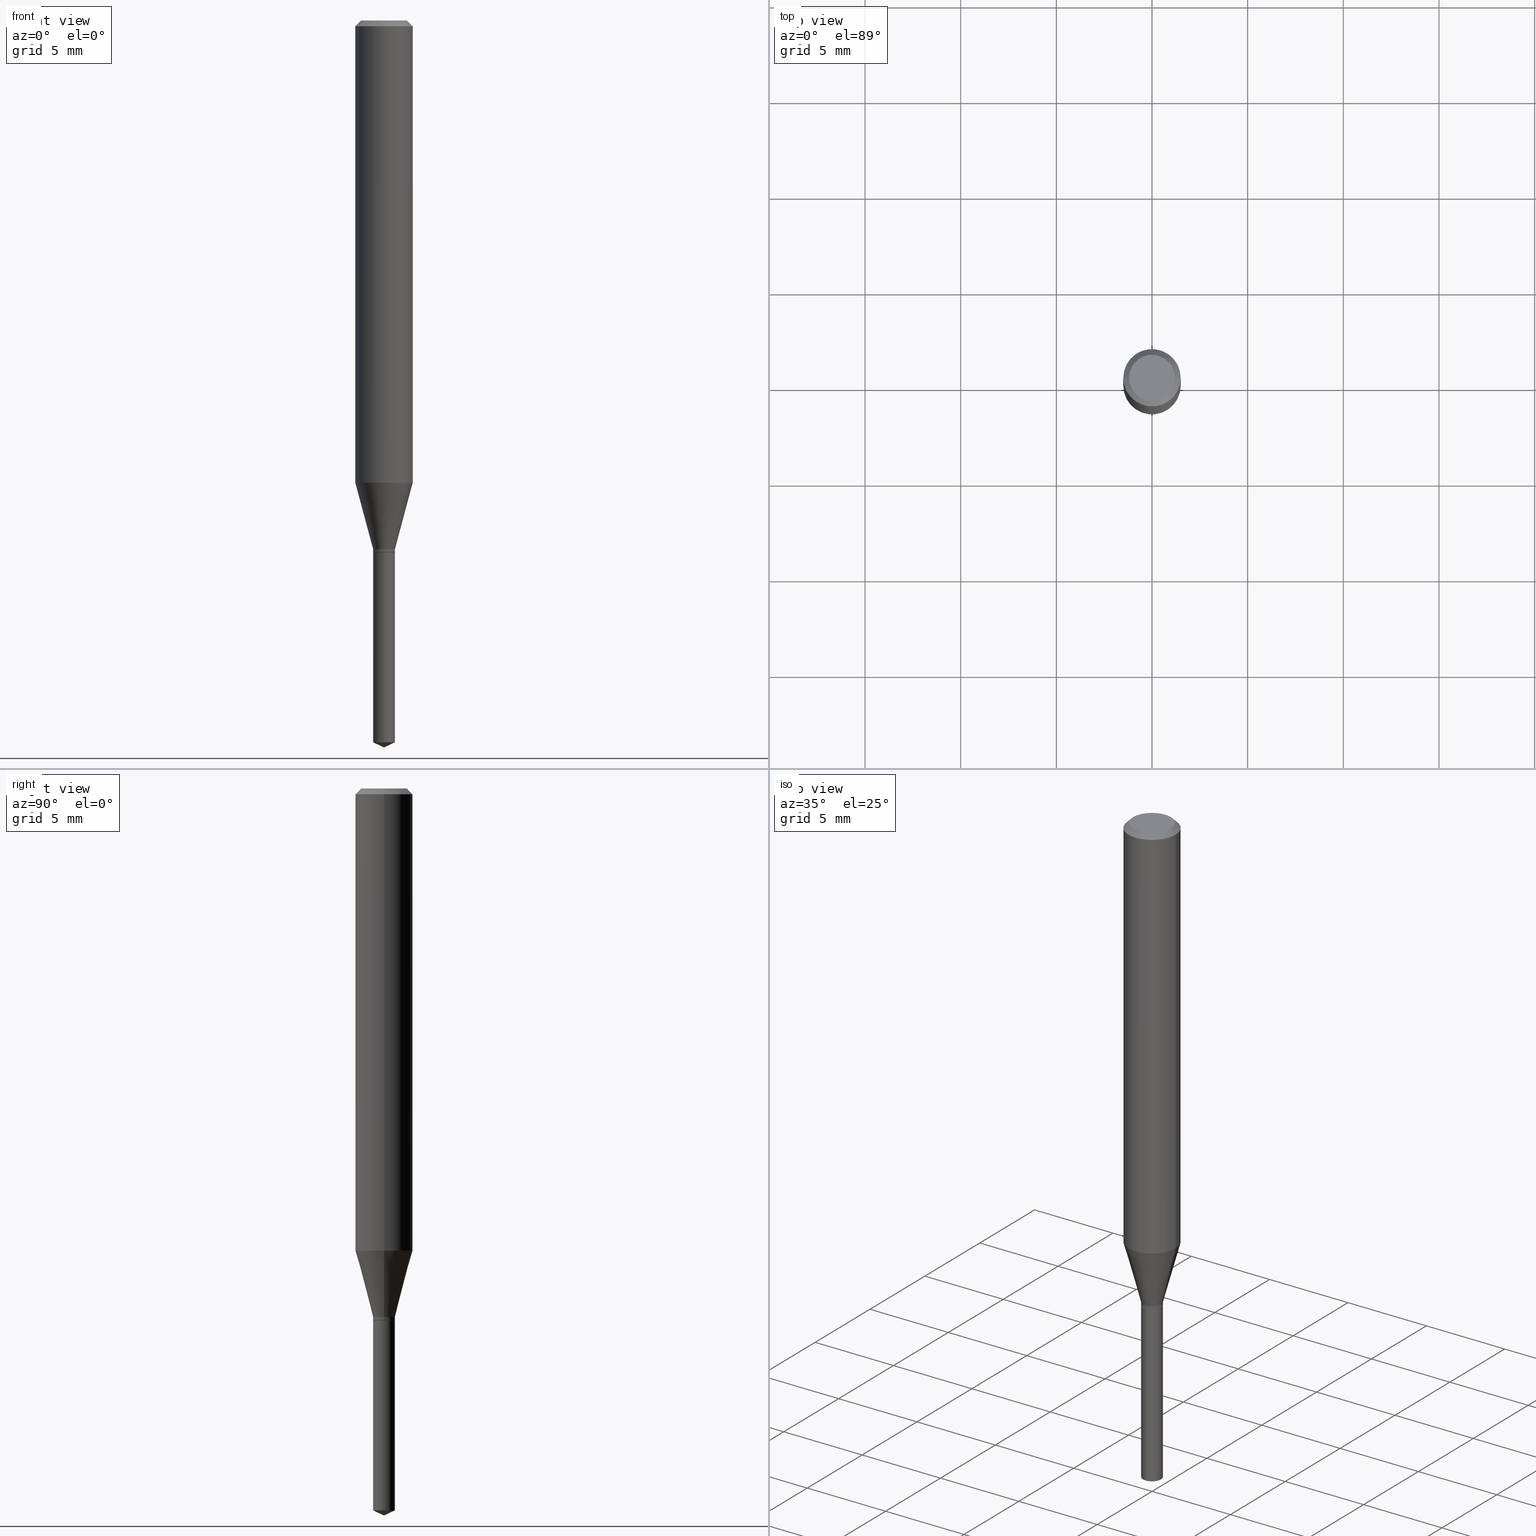
[diagram: canonical four-view strip — front | top / right | iso, engineering-drawing reading convention]
A machine part, canonical four-view strip (front | top / right | iso — engineering-drawing reading convention). The complete STEP part file that produces these views, byte-faithful:
ISO-10303-21;
HEADER;
FILE_DESCRIPTION (( 'STEP AP203' ),
    '1' );
FILE_NAME ('07841.STEP',
    '2024-04-24T04:15:34',
    ( '' ),
    ( '' ),
    'SwSTEP 2.0',
    'SolidWorks 2023',
    '' );
FILE_SCHEMA (( 'CONFIG_CONTROL_DESIGN' ));
ENDSEC;

DATA;
#1 = CYLINDRICAL_SURFACE ( 'NONE', #32, 0.02245000000000000120 ) ;
#2 = APPLICATION_PROTOCOL_DEFINITION ( 'international standard', 'config_control_design', 1994, #170 ) ;
#3 = UNCERTAINTY_MEASURE_WITH_UNIT (LENGTH_MEASURE( 1.000000000000000082E-05 ), #421, 'distance_accuracy_value', 'NONE');
#4 = APPROVAL ( #316, 'UNSPECIFIED' ) ;
#5 = EDGE_LOOP ( 'NONE', ( #41, #409, #341, #300 ) ) ;
#6 = EDGE_LOOP ( 'NONE', ( #315, #422 ) ) ;
#7 = CIRCLE ( 'NONE', #125, 0.02245000000000000120 ) ;
#8 = FACE_OUTER_BOUND ( 'NONE', #430, .T. ) ;
#9 = AXIS2_PLACEMENT_3D ( 'NONE', #119, #436, #58 ) ;
#10 = EDGE_CURVE ( 'NONE', #80, #283, #349, .T. ) ;
#11 = FACE_OUTER_BOUND ( 'NONE', #185, .T. ) ;
#12 = CARTESIAN_POINT ( 'NONE',  ( 3.658667988020872822E-29, -5.223602213574301462E-15, -1.496099999999999985 ) ) ;
#13 = CARTESIAN_POINT ( 'NONE',  ( 0.05905000000000006771, -4.123439461173745257E-16, 2.879382386107503723E-30 ) ) ;
#14 = ORIENTED_EDGE ( 'NONE', *, *, #447, .F. ) ;
#15 = CARTESIAN_POINT ( 'NONE',  ( 2.675342873966538993E-29, -3.819680584694400481E-15, -1.093999999999999861 ) ) ;
#16 = APPROVAL_STATUS ( 'not_yet_approved' ) ;
#17 = EDGE_LOOP ( 'NONE', ( #224, #209, #259, #101 ) ) ;
#18 = DIRECTION ( 'NONE',  ( 1.000000000000000000, -6.982962677686266711E-15, 4.876185090822587894E-29 ) ) ;
#19 = DIRECTION ( 'NONE',  ( 1.000000000000000000, -6.982962677686266711E-15, 4.876176775795936353E-29 ) ) ;
#20 = ORIENTED_EDGE ( 'NONE', *, *, #36, .F. ) ;
#21 = ADVANCED_FACE ( 'NONE', ( #296 ), #38, .T. ) ;
#22 = AXIS2_PLACEMENT_3D ( 'NONE', #176, #105, #360 ) ;
#23 = AXIS2_PLACEMENT_3D ( 'NONE', #236, #464, #157 ) ;
#24 = DATE_AND_TIME ( #291, #39 ) ;
#25 = PERSON_AND_ORGANIZATION_ROLE ( 'creator' ) ;
#26 = DIRECTION ( 'NONE',  ( -2.445468806185136597E-29, 3.491481338843145583E-15, 1.000000000000000000 ) ) ;
#27 = DIRECTION ( 'NONE',  ( -6.982962677686267499E-15, -1.000000000000000000, 3.520397390770462942E-15 ) ) ;
#28 = SECURITY_CLASSIFICATION_LEVEL ( 'unclassified' ) ;
#29 = DIRECTION ( 'NONE',  ( -2.445470214571802116E-29, 3.491479321953280158E-15, 1.000000000000000000 ) ) ;
#30 = EDGE_CURVE ( 'NONE', #84, #283, #290, .T. ) ;
#31 = AXIS2_PLACEMENT_3D ( 'NONE', #154, #474, #18 ) ;
#32 = AXIS2_PLACEMENT_3D ( 'NONE', #40, #37, #212 ) ;
#33 = EDGE_CURVE ( 'NONE', #52, #223, #484, .T. ) ;
#34 = CYLINDRICAL_SURFACE ( 'NONE', #141, 0.05905000000000006771 ) ;
#35 = DIRECTION ( 'NONE',  ( 1.000000000000000000, -6.982962677686273810E-15, 0.000000000000000000 ) ) ;
#36 = EDGE_CURVE ( 'NONE', #82, #337, #285, .T. ) ;
#37 = DIRECTION ( 'NONE',  ( -2.445468806185136597E-29, 3.491481338843145583E-15, 1.000000000000000000 ) ) ;
#38 = CONICAL_SURFACE ( 'NONE', #197, 0.02195000000000000076, 0.7853981633974141952 ) ;
#39 = LOCAL_TIME ( 0, 15, 34.00000000000000000, #186 ) ;
#40 = CARTESIAN_POINT ( 'NONE',  ( 0.000000000000000000, 0.000000000000000000, 0.000000000000000000 ) ) ;
#41 = ORIENTED_EDGE ( 'NONE', *, *, #130, .F. ) ;
#42 = ORIENTED_EDGE ( 'NONE', *, *, #372, .F. ) ;
#43 = ADVANCED_FACE ( 'NONE', ( #450 ), #199, .T. ) ;
#44 = MECHANICAL_CONTEXT ( 'NONE', #282, 'mechanical' ) ;
#45 = DIMENSIONAL_EXPONENTS ( 1.000000000000000000, 0.000000000000000000, 0.000000000000000000, 0.000000000000000000, 0.000000000000000000, 0.000000000000000000, 0.000000000000000000 ) ;
#46 = ORIENTED_EDGE ( 'NONE', *, *, #465, .F. ) ;
#47 = LINE ( 'NONE', #476, #488 ) ;
#48 = EDGE_LOOP ( 'NONE', ( #46, #263, #435 ) ) ;
#49 = AXIS2_PLACEMENT_3D ( 'NONE', #274, #26, #231 ) ;
#50 = APPLICATION_PROTOCOL_DEFINITION ( 'international standard', 'config_control_design', 1994, #282 ) ;
#51 = APPROVAL_PERSON_ORGANIZATION ( #90, #365, #166 ) ;
#52 = VERTEX_POINT ( 'NONE', #480 ) ;
#53 = PERSON_AND_ORGANIZATION ( #205, #302 ) ;
#54 = ORIENTED_EDGE ( 'NONE', *, *, #10, .T. ) ;
#55 = CARTESIAN_POINT ( 'NONE',  ( 0.04724000000000000421, -3.852183633974369838E-16, -3.380025165621689721E-19 ) ) ;
#56 = ORIENTED_EDGE ( 'NONE', *, *, #248, .F. ) ;
#57 = CC_DESIGN_PERSON_AND_ORGANIZATION_ASSIGNMENT ( #53, #322, ( #174 ) ) ;
#58 = DIRECTION ( 'NONE',  ( -6.982962677686266711E-15, -1.000000000000000000, 0.000000000000000000 ) ) ;
#59 = DIRECTION ( 'NONE',  ( -2.445468806185136597E-29, 3.491481338843145583E-15, 1.000000000000000000 ) ) ;
#60 = AXIS2_PLACEMENT_3D ( 'NONE', #453, #215, #180 ) ;
#61 = AXIS2_PLACEMENT_3D ( 'NONE', #424, #59, #348 ) ;
#62 = COORDINATED_UNIVERSAL_TIME_OFFSET ( 5, 0, .BEHIND. ) ;
#63 = DIRECTION ( 'NONE',  ( 2.445468806185136597E-29, -3.491481338843145583E-15, -1.000000000000000000 ) ) ;
#64 = PERSON_AND_ORGANIZATION ( #205, #302 ) ;
#65 = FACE_OUTER_BOUND ( 'NONE', #448, .T. ) ;
#66 = FACE_OUTER_BOUND ( 'NONE', #303, .T. ) ;
#67 = ADVANCED_FACE ( 'NONE', ( #416 ), #207, .T. ) ;
#68 = AXIS2_PLACEMENT_3D ( 'NONE', #124, #63, #277 ) ;
#69 = CIRCLE ( 'NONE', #9, 0.02245000000000000120 ) ;
#70 = ORIENTED_EDGE ( 'NONE', *, *, #104, .F. ) ;
#71 = CARTESIAN_POINT ( 'NONE',  ( 0.02245000000000000120, -3.954800912507630379E-15, -1.087799999999999878 ) ) ;
#72 = APPROVAL ( #16, 'UNSPECIFIED' ) ;
#73 = AXIS2_PLACEMENT_3D ( 'NONE', #158, #202, #470 ) ;
#74 = DIRECTION ( 'NONE',  ( 0.2588190451025212391, 1.565188264969622362E-15, 0.9659258262890679791 ) ) ;
#75 = PLANE ( 'NONE',  #399 ) ;
#76 = ORIENTED_EDGE ( 'NONE', *, *, #447, .T. ) ;
#77 = AXIS2_PLACEMENT_3D ( 'NONE', #249, #486, #137 ) ;
#78 = AXIS2_PLACEMENT_3D ( 'NONE', #415, #378, #143 ) ;
#79 = DIRECTION ( 'NONE',  ( 6.982962677686265922E-15, 1.000000000000000000, -3.491479321953280158E-15 ) ) ;
#80 = VERTEX_POINT ( 'NONE', #352 ) ;
#81 =( NAMED_UNIT ( * ) SI_UNIT ( $, .STERADIAN. ) SOLID_ANGLE_UNIT ( ) );
#82 = VERTEX_POINT ( 'NONE', #189 ) ;
#83 = VERTEX_POINT ( 'NONE', #168 ) ;
#84 = VERTEX_POINT ( 'NONE', #55 ) ;
#85 = APPROVAL_PERSON_ORGANIZATION ( #163, #4, #128 ) ;
#86 = ORIENTED_EDGE ( 'NONE', *, *, #248, .T. ) ;
#87 = CC_DESIGN_PERSON_AND_ORGANIZATION_ASSIGNMENT ( #388, #468, ( #394 ) ) ;
#88 = DIRECTION ( 'NONE',  ( -2.445470214571802116E-29, 3.491479321953280158E-15, 1.000000000000000000 ) ) ;
#89 = DIRECTION ( 'NONE',  ( -2.445468806185136597E-29, 3.491481338843145583E-15, 1.000000000000000000 ) ) ;
#90 = PERSON_AND_ORGANIZATION ( #205, #302 ) ;
#91 = CARTESIAN_POINT ( 'NONE',  ( -0.05905000000000011628, -2.901545796468403785E-15, -0.9512069404429788211 ) ) ;
#92 = ORIENTED_EDGE ( 'NONE', *, *, #256, .F. ) ;
#93 = ORIENTED_EDGE ( 'NONE', *, *, #183, .F. ) ;
#94 = EDGE_CURVE ( 'NONE', #223, #52, #109, .T. ) ;
#95 = CONICAL_SURFACE ( 'NONE', #188, 84.42940631927412198, 1.134464013796314896 ) ;
#96 = APPROVAL_PERSON_ORGANIZATION ( #272, #72, #129 ) ;
#97 = FACE_OUTER_BOUND ( 'NONE', #426, .T. ) ;
#98 = FACE_OUTER_BOUND ( 'NONE', #229, .T. ) ;
#99 = EDGE_CURVE ( 'NONE', #172, #80, #234, .T. ) ;
#100 = DATE_AND_TIME ( #196, #456 ) ;
#101 = ORIENTED_EDGE ( 'NONE', *, *, #261, .F. ) ;
#102 = CIRCLE ( 'NONE', #374, 0.02245000000000000120 ) ;
#103 = VECTOR ( 'NONE', #344, 39.37007874015748143 ) ;
#104 = EDGE_CURVE ( 'NONE', #84, #172, #230, .T. ) ;
#105 = DIRECTION ( 'NONE',  ( -2.445468806185136597E-29, 3.491481338843145583E-15, 1.000000000000000000 ) ) ;
#106 = CARTESIAN_POINT ( 'NONE',  ( 2.888098660104664642E-31, -4.123439461173780879E-17, -0.01181000000000007565 ) ) ;
#107 = CARTESIAN_POINT ( 'NONE',  ( 2.676565608369631794E-29, -3.821426325363822773E-15, -1.094499999999999806 ) ) ;
#108 = EDGE_CURVE ( 'NONE', #172, #84, #369, .T. ) ;
#109 = CIRCLE ( 'NONE', #314, 0.05905000000000011628 ) ;
#110 = LOCAL_TIME ( 0, 15, 34.00000000000000000, #62 ) ;
#111 = ADVANCED_FACE ( 'NONE', ( #356 ), #485, .T. ) ;
#112 = FACE_OUTER_BOUND ( 'NONE', #305, .T. ) ;
#113 = LINE ( 'NONE', #258, #182 ) ;
#114 = FACE_OUTER_BOUND ( 'NONE', #6, .T. ) ;
#115 = AXIS2_PLACEMENT_3D ( 'NONE', #181, #425, #19 ) ;
#116 = CARTESIAN_POINT ( 'NONE',  ( 2.676565608369631794E-29, -3.821426325363822773E-15, -1.094499999999999806 ) ) ;
#117 = EDGE_CURVE ( 'NONE', #283, #80, #383, .T. ) ;
#118 = ORIENTED_EDGE ( 'NONE', *, *, #482, .T. ) ;
#119 = CARTESIAN_POINT ( 'NONE',  ( 3.633065780117101996E-29, -5.187053496449942031E-15, -1.485631393074420270 ) ) ;
#120 = DIRECTION ( 'NONE',  ( -2.445470214571802116E-29, 3.491479321953280158E-15, 1.000000000000000000 ) ) ;
#121 = ADVANCED_FACE ( 'NONE', ( #97 ), #127, .T. ) ;
#122 = VERTEX_POINT ( 'NONE', #320 ) ;
#123 = DESIGN_CONTEXT ( 'detailed design', #170, 'design' ) ;
#124 = CARTESIAN_POINT ( 'NONE',  ( 2.888098660104664642E-31, -4.123439461173780879E-17, -0.01181000000000007565 ) ) ;
#125 = AXIS2_PLACEMENT_3D ( 'NONE', #232, #400, #203 ) ;
#126 = DATE_AND_TIME ( #201, #110 ) ;
#127 = CYLINDRICAL_SURFACE ( 'NONE', #49, 0.02245000000000000120 ) ;
#128 = APPROVAL_ROLE ( '' ) ;
#129 = APPROVAL_ROLE ( '' ) ;
#130 = EDGE_CURVE ( 'NONE', #223, #80, #47, .T. ) ;
#131 = DIRECTION ( 'NONE',  ( -2.445468806185136877E-29, 3.491481338843145188E-15, 1.000000000000000000 ) ) ;
#132 = CARTESIAN_POINT ( 'NONE',  ( -0.02245000000000000120, -3.649340148365844880E-15, -1.093999999999999861 ) ) ;
#133 = AXIS2_PLACEMENT_3D ( 'NONE', #284, #375, #264 ) ;
#134 = COORDINATED_UNIVERSAL_TIME_OFFSET ( 5, 0, .BEHIND. ) ;
#135 = AXIS2_PLACEMENT_3D ( 'NONE', #397, #241, #338 ) ;
#136 = ORIENTED_EDGE ( 'NONE', *, *, #372, .T. ) ;
#137 = DIRECTION ( 'NONE',  ( 1.000000000000000000, -6.982962677686272233E-15, 0.000000000000000000 ) ) ;
#138 = DIRECTION ( 'NONE',  ( 2.445468806185136597E-29, -3.491481338843145583E-15, -1.000000000000000000 ) ) ;
#139 = PRODUCT_DEFINITION ( 'UNKNOWN', '', #420, #123 ) ;
#140 = AXIS2_PLACEMENT_3D ( 'NONE', #402, #120, #206 ) ;
#141 = AXIS2_PLACEMENT_3D ( 'NONE', #146, #292, #193 ) ;
#142 = CARTESIAN_POINT ( 'NONE',  ( 2.676565608369631794E-29, -3.821426325363822773E-15, -1.094499999999999806 ) ) ;
#143 = DIRECTION ( 'NONE',  ( -1.000000000000000000, 6.982962677686265922E-15, -4.876176775795935793E-29 ) ) ;
#144 = ORIENTED_EDGE ( 'NONE', *, *, #401, .T. ) ;
#145 = EDGE_CURVE ( 'NONE', #483, #362, #278, .T. ) ;
#146 = CARTESIAN_POINT ( 'NONE',  ( 0.000000000000000000, 0.000000000000000000, 0.000000000000000000 ) ) ;
#147 = ADVANCED_FACE ( 'NONE', ( #11 ), #177, .T. ) ;
#148 = DIRECTION ( 'NONE',  ( 0.7071067811865232589, -2.468850131082003836E-15, 0.7071067811865715536 ) ) ;
#149 = AXIS2_PLACEMENT_3D ( 'NONE', #142, #363, #287 ) ;
#150 = CC_DESIGN_PERSON_AND_ORGANIZATION_ASSIGNMENT ( #64, #389, ( #139 ) ) ;
#151 = DIRECTION ( 'NONE',  ( -6.328713451373370167E-15, -0.9063077870366487154, 0.4226182617407018838 ) ) ;
#152 = ORIENTED_EDGE ( 'NONE', *, *, #273, .F. ) ;
#153 = DIRECTION ( 'NONE',  ( -6.982962677686266711E-15, -1.000000000000000000, 6.084293972526198645E-15 ) ) ;
#154 = CARTESIAN_POINT ( 'NONE',  ( 8.265746106709734507E-48, -1.180129479067563789E-33, -3.380025165646692144E-19 ) ) ;
#155 = CC_DESIGN_PERSON_AND_ORGANIZATION_ASSIGNMENT ( #443, #242, ( #420 ) ) ;
#156 = ORIENTED_EDGE ( 'NONE', *, *, #183, .T. ) ;
#157 = DIRECTION ( 'NONE',  ( 1.000000000000000000, -6.982962677686273810E-15, 0.000000000000000000 ) ) ;
#158 = CARTESIAN_POINT ( 'NONE',  ( 2.660180967368191730E-29, -3.798033400393573048E-15, -1.087799999999999878 ) ) ;
#159 = CARTESIAN_POINT ( 'NONE',  ( 2.676565608369631794E-29, -3.821426325363822773E-15, -1.094499999999999806 ) ) ;
#160 = ORIENTED_EDGE ( 'NONE', *, *, #473, .F. ) ;
#161 = CIRCLE ( 'NONE', #222, 0.02245000000000000120 ) ;
#162 = DIRECTION ( 'NONE',  ( -6.982962677686266711E-15, -1.000000000000000000, 6.084293972526198645E-15 ) ) ;
#163 = PERSON_AND_ORGANIZATION ( #205, #302 ) ;
#164 = PERSON_AND_ORGANIZATION ( #205, #302 ) ;
#165 = PRODUCT_DEFINITION_SHAPE ( 'NONE', 'NONE',  #139 ) ;
#166 = APPROVAL_ROLE ( '' ) ;
#167 = ADVANCED_FACE ( 'NONE', ( #66 ), #311, .T. ) ;
#168 = CARTESIAN_POINT ( 'NONE',  ( -1.567675121140203782E-16, -0.02245000000000519150, -1.485631393074420270 ) ) ;
#169 = DIRECTION ( 'NONE',  ( -2.445470214571802396E-29, 3.491479321953280158E-15, 1.000000000000000000 ) ) ;
#170 = APPLICATION_CONTEXT ( 'configuration controlled 3d designs of mechanical parts and assemblies' ) ;
#171 = SHAPE_DEFINITION_REPRESENTATION ( #165, #226 ) ;
#172 = VERTEX_POINT ( 'NONE', #471 ) ;
#173 = CARTESIAN_POINT ( 'NONE',  ( -0.02195000000000000076, -3.665462194864480605E-15, -1.094499999999999806 ) ) ;
#174 = SECURITY_CLASSIFICATION ( '', '', #28 ) ;
#175 = ORIENTED_EDGE ( 'NONE', *, *, #108, .F. ) ;
#176 = CARTESIAN_POINT ( 'NONE',  ( 2.676565608369631794E-29, -3.821426325363822773E-15, -1.094499999999999806 ) ) ;
#177 = CONICAL_SURFACE ( 'NONE', #213, 0.05905000000000000526, 0.7853981633974453924 ) ;
#178 = CIRCLE ( 'NONE', #294, 0.02195000000000000076 ) ;
#179 = EDGE_CURVE ( 'NONE', #405, #52, #326, .T. ) ;
#180 = DIRECTION ( 'NONE',  ( 1.000000000000000000, -6.982962677686266711E-15, 0.000000000000000000 ) ) ;
#181 = CARTESIAN_POINT ( 'NONE',  ( 0.000000000000000000, 0.000000000000000000, 0.000000000000000000 ) ) ;
#182 = VECTOR ( 'NONE', #295, 39.37007874015748143 ) ;
#183 = EDGE_CURVE ( 'NONE', #82, #377, #216, .T. ) ;
#184 = ORIENTED_EDGE ( 'NONE', *, *, #401, .F. ) ;
#185 = EDGE_LOOP ( 'NONE', ( #70, #423, #269, #459 ) ) ;
#186 = COORDINATED_UNIVERSAL_TIME_OFFSET ( 5, 0, .BEHIND. ) ;
#187 = ORIENTED_EDGE ( 'NONE', *, *, #33, .F. ) ;
#188 = AXIS2_PLACEMENT_3D ( 'NONE', #279, #442, #27 ) ;
#189 = CARTESIAN_POINT ( 'NONE',  ( 0.02195000000000000076, -3.974702356139036309E-15, -1.094499999999999806 ) ) ;
#190 = AXIS2_PLACEMENT_3D ( 'NONE', #191, #275, #153 ) ;
#191 = CARTESIAN_POINT ( 'NONE',  ( 2.676565608369631794E-29, -3.821426325363822773E-15, -1.094499999999999806 ) ) ;
#192 = ORIENTED_EDGE ( 'NONE', *, *, #145, .T. ) ;
#193 = DIRECTION ( 'NONE',  ( 1.000000000000000000, -6.982962677686266711E-15, 4.876176775795936353E-29 ) ) ;
#194 = DATE_AND_TIME ( #245, #354 ) ;
#195 = ORIENTED_EDGE ( 'NONE', *, *, #227, .T. ) ;
#196 = CALENDAR_DATE ( 2024, 24, 4 ) ;
#197 = AXIS2_PLACEMENT_3D ( 'NONE', #220, #376, #210 ) ;
#198 = DIRECTION ( 'NONE',  ( 1.000000000000000000, -6.982962677686268288E-15, 0.000000000000000000 ) ) ;
#199 = CONICAL_SURFACE ( 'NONE', #22, 0.02195000000000000076, 0.7853981633974141952 ) ;
#200 = CC_DESIGN_SECURITY_CLASSIFICATION ( #174, ( #420 ) ) ;
#201 = CALENDAR_DATE ( 2024, 24, 4 ) ;
#202 = DIRECTION ( 'NONE',  ( -2.445468806185136597E-29, 3.491481338843145583E-15, 1.000000000000000000 ) ) ;
#203 = DIRECTION ( 'NONE',  ( 1.000000000000000000, -6.982962677686273810E-15, 0.000000000000000000 ) ) ;
#204 = CALENDAR_DATE ( 2024, 24, 4 ) ;
#205 = PERSON ( 'UNSPECIFIED', 'UNSPECIFIED', 'UNSPECIFIED', ('UNSPECIFIED'), ('UNSPECIFIED'), ('UNSPECIFIED') ) ;
#206 = DIRECTION ( 'NONE',  ( -6.982962677686266711E-15, -1.000000000000000000, 6.084293972526198645E-15 ) ) ;
#207 = CONICAL_SURFACE ( 'NONE', #133, 84.42940631927412198, 1.134464013796314896 ) ;
#208 = CARTESIAN_POINT ( 'NONE',  ( -0.02195000000000000076, -3.662812967690369404E-15, -1.094499999999999806 ) ) ;
#209 = ORIENTED_EDGE ( 'NONE', *, *, #130, .T. ) ;
#210 = DIRECTION ( 'NONE',  ( 1.000000000000000000, -6.982962677686272233E-15, 0.000000000000000000 ) ) ;
#211 = CLOSED_SHELL ( 'NONE', ( #21, #147, #440, #454, #413, #121, #111, #219, #221, #427, #339, #43 ) ) ;
#212 = DIRECTION ( 'NONE',  ( 1.000000000000000000, -6.982962677686267499E-15, 4.876176775795935232E-29 ) ) ;
#213 = AXIS2_PLACEMENT_3D ( 'NONE', #106, #138, #267 ) ;
#214 = CIRCLE ( 'NONE', #190, 0.02245000000000000120 ) ;
#215 = DIRECTION ( 'NONE',  ( -2.445468806185136597E-29, 3.491481338843145583E-15, 1.000000000000000000 ) ) ;
#216 = LINE ( 'NONE', #371, #429 ) ;
#217 = DIRECTION ( 'NONE',  ( -2.445468806185136597E-29, 3.491481338843145583E-15, 1.000000000000000000 ) ) ;
#218 = DIRECTION ( 'NONE',  ( -2.445468806185136597E-29, 3.491481338843145583E-15, 1.000000000000000000 ) ) ;
#219 = ADVANCED_FACE ( 'NONE', ( #455 ), #364, .T. ) ;
#220 = CARTESIAN_POINT ( 'NONE',  ( 2.676565608369631794E-29, -3.821426325363822773E-15, -1.094499999999999806 ) ) ;
#221 = ADVANCED_FACE ( 'NONE', ( #65 ), #449, .T. ) ;
#222 = AXIS2_PLACEMENT_3D ( 'NONE', #289, #373, #35 ) ;
#223 = VERTEX_POINT ( 'NONE', #91 ) ;
#224 = ORIENTED_EDGE ( 'NONE', *, *, #33, .T. ) ;
#225 =( NAMED_UNIT ( * ) PLANE_ANGLE_UNIT ( ) SI_UNIT ( $, .RADIAN. ) );
#226 = ADVANCED_BREP_SHAPE_REPRESENTATION ( '07841', ( #475, #478, #135 ), #251 ) ;
#227 = EDGE_CURVE ( 'NONE', #83, #122, #239, .T. ) ;
#228 = LINE ( 'NONE', #312, #103 ) ;
#229 = EDGE_LOOP ( 'NONE', ( #384, #281, #195, #266 ) ) ;
#230 = CIRCLE ( 'NONE', #61, 0.04724000000000000421 ) ;
#231 = DIRECTION ( 'NONE',  ( 1.000000000000000000, -6.982962677686267499E-15, 4.876176775795935232E-29 ) ) ;
#232 = CARTESIAN_POINT ( 'NONE',  ( 2.675342873966538993E-29, -3.819680584694400481E-15, -1.093999999999999861 ) ) ;
#233 = CC_DESIGN_APPROVAL ( #365, ( #174 ) ) ;
#234 = LINE ( 'NONE', #441, #351 ) ;
#235 = ORIENTED_EDGE ( 'NONE', *, *, #99, .T. ) ;
#236 = CARTESIAN_POINT ( 'NONE',  ( 2.660180967368191730E-29, -3.798033400393573048E-15, -1.087799999999999878 ) ) ;
#237 = DATE_AND_TIME ( #204, #286 ) ;
#238 = DIRECTION ( 'NONE',  ( -0.7071067811865454633, 2.468850131082235367E-15, -0.7071067811865495711 ) ) ;
#239 = LINE ( 'NONE', #395, #419 ) ;
#240 = ORIENTED_EDGE ( 'NONE', *, *, #36, .T. ) ;
#241 = DIRECTION ( 'NONE',  ( 0.000000000000000000, 0.000000000000000000, 1.000000000000000000 ) ) ;
#242 = PERSON_AND_ORGANIZATION_ROLE ( 'design_supplier' ) ;
#243 = DIRECTION ( 'NONE',  ( -2.445468806185136877E-29, 3.491481338843145188E-15, 1.000000000000000000 ) ) ;
#244 = CYLINDRICAL_SURFACE ( 'NONE', #140, 0.02245000000000000120 ) ;
#245 = CALENDAR_DATE ( 2024, 24, 4 ) ;
#246 = ORIENTED_EDGE ( 'NONE', *, *, #253, .F. ) ;
#247 = ORIENTED_EDGE ( 'NONE', *, *, #458, .T. ) ;
#248 = EDGE_CURVE ( 'NONE', #122, #362, #335, .T. ) ;
#249 = CARTESIAN_POINT ( 'NONE',  ( 2.676565608369631794E-29, -3.821426325363822773E-15, -1.094499999999999806 ) ) ;
#250 = VECTOR ( 'NONE', #74, 39.37007874015748854 ) ;
#251 =( GEOMETRIC_REPRESENTATION_CONTEXT ( 3 ) GLOBAL_UNCERTAINTY_ASSIGNED_CONTEXT ( ( #3 ) ) GLOBAL_UNIT_ASSIGNED_CONTEXT ( ( #421, #225, #81 ) ) REPRESENTATION_CONTEXT ( 'NONE', 'WORKASPACE' ) );
#252 = EDGE_LOOP ( 'NONE', ( #240, #467, #152, #93 ) ) ;
#253 = EDGE_CURVE ( 'NONE', #83, #483, #254, .T. ) ;
#254 = CIRCLE ( 'NONE', #293, 0.02245000000000000120 ) ;
#255 = VECTOR ( 'NONE', #151, 39.37007874015748854 ) ;
#256 = EDGE_CURVE ( 'NONE', #337, #298, #265, .T. ) ;
#257 = CARTESIAN_POINT ( 'NONE',  ( 2.660180967368191730E-29, -3.798033400393573048E-15, -1.087799999999999878 ) ) ;
#258 = CARTESIAN_POINT ( 'NONE',  ( -0.02245000000000000120, 1.595168441781425003E-16, -1.104300927762226571E-30 ) ) ;
#259 = ORIENTED_EDGE ( 'NONE', *, *, #117, .F. ) ;
#260 = PLANE ( 'NONE',  #78 ) ;
#261 = EDGE_CURVE ( 'NONE', #52, #283, #432, .T. ) ;
#262 = LINE ( 'NONE', #304, #255 ) ;
#263 = ORIENTED_EDGE ( 'NONE', *, *, #452, .T. ) ;
#264 = DIRECTION ( 'NONE',  ( -6.982962677686267499E-15, -1.000000000000000000, 3.520397390770462942E-15 ) ) ;
#265 = LINE ( 'NONE', #173, #460 ) ;
#266 = ORIENTED_EDGE ( 'NONE', *, *, #482, .F. ) ;
#267 = DIRECTION ( 'NONE',  ( -1.000000000000000000, 6.982962677686265922E-15, 0.000000000000000000 ) ) ;
#268 =( LENGTH_UNIT ( ) NAMED_UNIT ( * ) SI_UNIT ( $, .METRE. ) );
#269 = ORIENTED_EDGE ( 'NONE', *, *, #117, .T. ) ;
#270 = CARTESIAN_POINT ( 'NONE',  ( 2.326146901080107972E-29, -3.321121281934744067E-15, -0.9512069404429788211 ) ) ;
#271 = CARTESIAN_POINT ( 'NONE',  ( 0.05905000000000000526, -4.535783407291119586E-16, -0.01181000000000007565 ) ) ;
#272 = PERSON_AND_ORGANIZATION ( #205, #302 ) ;
#273 = EDGE_CURVE ( 'NONE', #377, #298, #7, .T. ) ;
#274 = CARTESIAN_POINT ( 'NONE',  ( 0.000000000000000000, 0.000000000000000000, 0.000000000000000000 ) ) ;
#275 = DIRECTION ( 'NONE',  ( -2.445470214571802116E-29, 3.491479321953280158E-15, 1.000000000000000000 ) ) ;
#276 = ORIENTED_EDGE ( 'NONE', *, *, #465, .T. ) ;
#277 = DIRECTION ( 'NONE',  ( -1.000000000000000000, 6.982962677686265922E-15, 0.000000000000000000 ) ) ;
#278 = LINE ( 'NONE', #343, #330 ) ;
#279 = CARTESIAN_POINT ( 'NONE',  ( -9.261968845786000133E-28, 1.322362114038720264E-13, 37.87397874015748300 ) ) ;
#280 = APPROVAL_DATE_TIME ( #126, #72 ) ;
#281 = ORIENTED_EDGE ( 'NONE', *, *, #489, .T. ) ;
#282 = APPLICATION_CONTEXT ( 'configuration controlled 3d designs of mechanical parts and assemblies' ) ;
#283 = VERTEX_POINT ( 'NONE', #271 ) ;
#284 = CARTESIAN_POINT ( 'NONE',  ( -9.261968845786000133E-28, 1.322362114038720264E-13, 37.87397874015748300 ) ) ;
#285 = CIRCLE ( 'NONE', #77, 0.02195000000000000076 ) ;
#286 = LOCAL_TIME ( 0, 15, 34.00000000000000000, #355 ) ;
#287 = DIRECTION ( 'NONE',  ( 1.000000000000000000, -6.982962677686265922E-15, 4.876176775795935793E-29 ) ) ;
#288 = PRODUCT_RELATED_PRODUCT_CATEGORY ( 'detail', '', ( #394 ) ) ;
#289 = CARTESIAN_POINT ( 'NONE',  ( 2.660180967368191730E-29, -3.798033400393573048E-15, -1.087799999999999878 ) ) ;
#290 = LINE ( 'NONE', #368, #406 ) ;
#291 = CALENDAR_DATE ( 2024, 24, 4 ) ;
#292 = DIRECTION ( 'NONE',  ( -2.445468806185136597E-29, 3.491481338843145583E-15, 1.000000000000000000 ) ) ;
#293 = AXIS2_PLACEMENT_3D ( 'NONE', #353, #477, #387 ) ;
#294 = AXIS2_PLACEMENT_3D ( 'NONE', #116, #472, #308 ) ;
#295 = DIRECTION ( 'NONE',  ( -2.445468806185136877E-29, 3.491481338843145188E-15, 1.000000000000000000 ) ) ;
#296 = FACE_OUTER_BOUND ( 'NONE', #252, .T. ) ;
#297 = LINE ( 'NONE', #382, #408 ) ;
#298 = VERTEX_POINT ( 'NONE', #132 ) ;
#299 = DIRECTION ( 'NONE',  ( 2.445470214571801836E-29, -3.491479321953280158E-15, -1.000000000000000000 ) ) ;
#300 = ORIENTED_EDGE ( 'NONE', *, *, #10, .F. ) ;
#301 = VECTOR ( 'NONE', #243, 39.37007874015748143 ) ;
#302 = ORGANIZATION ( 'UNSPECIFIED', 'UNSPECIFIED', '' ) ;
#303 = EDGE_LOOP ( 'NONE', ( #445, #192, #56, #358 ) ) ;
#304 = CARTESIAN_POINT ( 'NONE',  ( 3.658664905062460986E-29, -5.223606628546217219E-15, -1.496099999999999985 ) ) ;
#305 = EDGE_LOOP ( 'NONE', ( #86, #118 ) ) ;
#306 = DIRECTION ( 'NONE',  ( -2.445468806185136597E-29, 3.491481338843145583E-15, 1.000000000000000000 ) ) ;
#307 = ORIENTED_EDGE ( 'NONE', *, *, #30, .F. ) ;
#308 = DIRECTION ( 'NONE',  ( 1.000000000000000000, -6.982962677686272233E-15, 0.000000000000000000 ) ) ;
#309 = ORIENTED_EDGE ( 'NONE', *, *, #473, .T. ) ;
#310 = ORIENTED_EDGE ( 'NONE', *, *, #179, .F. ) ;
#311 = CYLINDRICAL_SURFACE ( 'NONE', #479, 0.02245000000000000120 ) ;
#312 = CARTESIAN_POINT ( 'NONE',  ( 3.658668015054778287E-29, -5.223602213574301462E-15, -1.496099999999999985 ) ) ;
#313 = ADVANCED_FACE ( 'NONE', ( #357 ), #95, .T. ) ;
#314 = AXIS2_PLACEMENT_3D ( 'NONE', #270, #434, #466 ) ;
#315 = ORIENTED_EDGE ( 'NONE', *, *, #108, .T. ) ;
#316 = APPROVAL_STATUS ( 'not_yet_approved' ) ;
#317 = COORDINATED_UNIVERSAL_TIME_OFFSET ( 5, 0, .BEHIND. ) ;
#318 = DIRECTION ( 'NONE',  ( -0.7071067811865232589, 7.493145998870265808E-15, 0.7071067811865715536 ) ) ;
#319 = CARTESIAN_POINT ( 'NONE',  ( 2.888098660104664642E-31, -4.123439461173780879E-17, -0.01181000000000007565 ) ) ;
#320 = CARTESIAN_POINT ( 'NONE',  ( -1.567675121140299184E-16, -0.02245000000000382107, -1.094499999999999806 ) ) ;
#321 = DIRECTION ( 'NONE',  ( -6.982962677686266711E-15, -1.000000000000000000, 6.084293972526198645E-15 ) ) ;
#322 = PERSON_AND_ORGANIZATION_ROLE ( 'classification_officer' ) ;
#323 = ADVANCED_FACE ( 'NONE', ( #98 ), #244, .T. ) ;
#324 = AXIS2_PLACEMENT_3D ( 'NONE', #319, #217, #334 ) ;
#325 = FACE_OUTER_BOUND ( 'NONE', #367, .T. ) ;
#326 = LINE ( 'NONE', #71, #250 ) ;
#327 = EDGE_LOOP ( 'NONE', ( #92, #76, #156, #390 ) ) ;
#328 = ORIENTED_EDGE ( 'NONE', *, *, #404, .F. ) ;
#329 = CC_DESIGN_DATE_AND_TIME_ASSIGNMENT ( #237, #469, ( #139 ) ) ;
#330 = VECTOR ( 'NONE', #386, 39.37007874015748143 ) ;
#331 = VECTOR ( 'NONE', #428, 39.37007874015748143 ) ;
#332 = DIRECTION ( 'NONE',  ( 0.7071067811865454633, -7.319954787623248157E-15, -0.7071067811865495711 ) ) ;
#333 = DIRECTION ( 'NONE',  ( 1.000000000000000000, -6.982962677686273810E-15, 0.000000000000000000 ) ) ;
#334 = DIRECTION ( 'NONE',  ( 1.000000000000000000, -6.982962677686268288E-15, 0.000000000000000000 ) ) ;
#335 = CIRCLE ( 'NONE', #439, 0.02245000000000000120 ) ;
#336 = CARTESIAN_POINT ( 'NONE',  ( 0.02245000000000000120, -3.976448096808457812E-15, -1.093999999999999861 ) ) ;
#337 = VERTEX_POINT ( 'NONE', #208 ) ;
#338 = DIRECTION ( 'NONE',  ( 1.000000000000000000, 0.000000000000000000, 0.000000000000000000 ) ) ;
#339 = ADVANCED_FACE ( 'NONE', ( #325 ), #366, .F. ) ;
#340 = CARTESIAN_POINT ( 'NONE',  ( 1.595168441781788125E-16, 0.02244999999999481438, -1.485631393074420270 ) ) ;
#341 = ORIENTED_EDGE ( 'NONE', *, *, #261, .T. ) ;
#342 = CONICAL_SURFACE ( 'NONE', #23, 0.02245000000000000120, 0.2617993877991499629 ) ;
#343 = CARTESIAN_POINT ( 'NONE',  ( 1.595168441781692230E-16, 0.02244999999999618134, -1.094500000000000028 ) ) ;
#344 = DIRECTION ( 'NONE',  ( 6.439704144417026409E-15, 0.9063077870366517130, 0.4226182617406956665 ) ) ;
#345 = EDGE_LOOP ( 'NONE', ( #380, #276, #246 ) ) ;
#346 = LENGTH_MEASURE_WITH_UNIT ( LENGTH_MEASURE( 0.02539999999999999897 ), #268 );
#347 = VERTEX_POINT ( 'NONE', #411 ) ;
#348 = DIRECTION ( 'NONE',  ( 1.000000000000000000, -6.982962677686266711E-15, 4.876185090822587894E-29 ) ) ;
#349 = CIRCLE ( 'NONE', #324, 0.05905000000000000526 ) ;
#350 = CLOSED_SHELL ( 'NONE', ( #167, #313, #67, #323, #418 ) ) ;
#351 = VECTOR ( 'NONE', #238, 39.37007874015748143 ) ;
#352 = CARTESIAN_POINT ( 'NONE',  ( -0.05905000000000000526, -1.261602352806900813E-15, -0.01181000000000007565 ) ) ;
#353 = CARTESIAN_POINT ( 'NONE',  ( 3.633065780117101996E-29, -5.187053496449942031E-15, -1.485631393074420270 ) ) ;
#354 = LOCAL_TIME ( 0, 15, 34.00000000000000000, #317 ) ;
#355 = COORDINATED_UNIVERSAL_TIME_OFFSET ( 5, 0, .BEHIND. ) ;
#356 = FACE_OUTER_BOUND ( 'NONE', #438, .T. ) ;
#357 = FACE_OUTER_BOUND ( 'NONE', #345, .T. ) ;
#358 = ORIENTED_EDGE ( 'NONE', *, *, #227, .F. ) ;
#359 = CARTESIAN_POINT ( 'NONE',  ( 2.676565608369631794E-29, -3.821426325363822773E-15, -1.094499999999999806 ) ) ;
#360 = DIRECTION ( 'NONE',  ( 1.000000000000000000, -6.982962677686272233E-15, 0.000000000000000000 ) ) ;
#361 = APPROVAL_STATUS ( 'not_yet_approved' ) ;
#362 = VERTEX_POINT ( 'NONE', #490 ) ;
#363 = DIRECTION ( 'NONE',  ( -2.438088387897960049E-29, 3.491481338843145188E-15, 1.000000000000000000 ) ) ;
#364 = CYLINDRICAL_SURFACE ( 'NONE', #115, 0.05905000000000006771 ) ;
#365 = APPROVAL ( #361, 'UNSPECIFIED' ) ;
#366 = PLANE ( 'NONE',  #149 ) ;
#367 = EDGE_LOOP ( 'NONE', ( #20, #14 ) ) ;
#368 = CARTESIAN_POINT ( 'NONE',  ( 0.05905000000000000526, -4.463468013801467941E-16, -0.01181000000000007565 ) ) ;
#369 = CIRCLE ( 'NONE', #31, 0.04724000000000000421 ) ;
#370 = EDGE_CURVE ( 'NONE', #347, #223, #297, .T. ) ;
#371 = CARTESIAN_POINT ( 'NONE',  ( 0.02195000000000000076, -3.974702356139036309E-15, -1.094499999999999806 ) ) ;
#372 = EDGE_CURVE ( 'NONE', #298, #347, #113, .T. ) ;
#373 = DIRECTION ( 'NONE',  ( -2.445468806185136597E-29, 3.491481338843145583E-15, 1.000000000000000000 ) ) ;
#374 = AXIS2_PLACEMENT_3D ( 'NONE', #257, #218, #333 ) ;
#375 = DIRECTION ( 'NONE',  ( -2.445470214571802116E-29, 3.491479321953280158E-15, 1.000000000000000000 ) ) ;
#376 = DIRECTION ( 'NONE',  ( -2.445468806185136597E-29, 3.491481338843145583E-15, 1.000000000000000000 ) ) ;
#377 = VERTEX_POINT ( 'NONE', #336 ) ;
#378 = DIRECTION ( 'NONE',  ( 2.438088387897960049E-29, -3.491481338843145188E-15, -1.000000000000000000 ) ) ;
#379 = CC_DESIGN_DATE_AND_TIME_ASSIGNMENT ( #100, #433, ( #174 ) ) ;
#380 = ORIENTED_EDGE ( 'NONE', *, *, #452, .F. ) ;
#381 = CARTESIAN_POINT ( 'NONE',  ( 0.02245000000000000120, -1.567675121140567151E-16, 1.094701686166187563E-30 ) ) ;
#382 = CARTESIAN_POINT ( 'NONE',  ( -0.02245000000000000120, -3.638516556215430769E-15, -1.087799999999999878 ) ) ;
#383 = CIRCLE ( 'NONE', #398, 0.05905000000000000526 ) ;
#384 = ORIENTED_EDGE ( 'NONE', *, *, #145, .F. ) ;
#385 = CC_DESIGN_APPROVAL ( #72, ( #420 ) ) ;
#386 = DIRECTION ( 'NONE',  ( -2.445470214571802396E-29, 3.491479321953280158E-15, 1.000000000000000000 ) ) ;
#387 = DIRECTION ( 'NONE',  ( -6.982962677686266711E-15, -1.000000000000000000, 0.000000000000000000 ) ) ;
#388 = PERSON_AND_ORGANIZATION ( #205, #302 ) ;
#389 = PERSON_AND_ORGANIZATION_ROLE ( 'creator' ) ;
#390 = ORIENTED_EDGE ( 'NONE', *, *, #458, .F. ) ;
#391 = EDGE_LOOP ( 'NONE', ( #410, #136, #184, #160 ) ) ;
#392 = DIRECTION ( 'NONE',  ( 1.000000000000000000, -6.982962677686273810E-15, 0.000000000000000000 ) ) ;
#393 = APPROVAL_DATE_TIME ( #194, #365 ) ;
#394 = PRODUCT ( '07841', '07841', '', ( #44 ) ) ;
#395 = CARTESIAN_POINT ( 'NONE',  ( -1.567675121140299184E-16, -0.02245000000000382107, -1.094499999999999806 ) ) ;
#396 = ORIENTED_EDGE ( 'NONE', *, *, #179, .T. ) ;
#397 = CARTESIAN_POINT ( 'NONE',  ( 0.000000000000000000, 0.000000000000000000, 0.000000000000000000 ) ) ;
#398 = AXIS2_PLACEMENT_3D ( 'NONE', #437, #306, #198 ) ;
#399 = AXIS2_PLACEMENT_3D ( 'NONE', #107, #299, #79 ) ;
#400 = DIRECTION ( 'NONE',  ( -2.445468806185136597E-29, 3.491481338843145583E-15, 1.000000000000000000 ) ) ;
#401 = EDGE_CURVE ( 'NONE', #405, #347, #102, .T. ) ;
#402 = CARTESIAN_POINT ( 'NONE',  ( 2.676565608369631794E-29, -3.821426325363822773E-15, -1.094499999999999806 ) ) ;
#403 = ORIENTED_EDGE ( 'NONE', *, *, #94, .F. ) ;
#404 = EDGE_CURVE ( 'NONE', #347, #405, #161, .T. ) ;
#405 = VERTEX_POINT ( 'NONE', #457 ) ;
#406 = VECTOR ( 'NONE', #332, 39.37007874015748143 ) ;
#407 = CC_DESIGN_PERSON_AND_ORGANIZATION_ASSIGNMENT ( #164, #25, ( #420 ) ) ;
#408 = VECTOR ( 'NONE', #487, 39.37007874015748854 ) ;
#409 = ORIENTED_EDGE ( 'NONE', *, *, #94, .T. ) ;
#410 = ORIENTED_EDGE ( 'NONE', *, *, #273, .T. ) ;
#411 = CARTESIAN_POINT ( 'NONE',  ( -0.02245000000000000120, -3.649340148365844880E-15, -1.087799999999999878 ) ) ;
#412 = FACE_OUTER_BOUND ( 'NONE', #17, .T. ) ;
#413 = ADVANCED_FACE ( 'NONE', ( #417 ), #1, .T. ) ;
#414 = CC_DESIGN_APPROVAL ( #4, ( #139 ) ) ;
#415 = CARTESIAN_POINT ( 'NONE',  ( 4.132873053354867254E-48, -5.900647395337818946E-34, -1.690012582823346072E-19 ) ) ;
#416 = FACE_OUTER_BOUND ( 'NONE', #48, .T. ) ;
#417 = FACE_OUTER_BOUND ( 'NONE', #391, .T. ) ;
#418 = ADVANCED_FACE ( 'NONE', ( #112 ), #75, .F. ) ;
#419 = VECTOR ( 'NONE', #169, 39.37007874015748143 ) ;
#420 = PRODUCT_DEFINITION_FORMATION_WITH_SPECIFIED_SOURCE ( 'ANY', '', #394, .NOT_KNOWN. ) ;
#421 =( CONVERSION_BASED_UNIT ( 'INCH', #346 ) LENGTH_UNIT ( ) NAMED_UNIT ( #45 ) );
#422 = ORIENTED_EDGE ( 'NONE', *, *, #104, .T. ) ;
#423 = ORIENTED_EDGE ( 'NONE', *, *, #30, .T. ) ;
#424 = CARTESIAN_POINT ( 'NONE',  ( 8.265746106709734507E-48, -1.180129479067563789E-33, -3.380025165646692144E-19 ) ) ;
#425 = DIRECTION ( 'NONE',  ( -2.445468806185136597E-29, 3.491481338843145583E-15, 1.000000000000000000 ) ) ;
#426 = EDGE_LOOP ( 'NONE', ( #42, #247, #309, #328 ) ) ;
#427 = ADVANCED_FACE ( 'NONE', ( #114 ), #260, .F. ) ;
#428 = DIRECTION ( 'NONE',  ( -2.445468806185136877E-29, 3.491481338843145188E-15, 1.000000000000000000 ) ) ;
#429 = VECTOR ( 'NONE', #148, 39.37007874015748854 ) ;
#430 = EDGE_LOOP ( 'NONE', ( #144, #463, #187, #310 ) ) ;
#431 = AXIS2_PLACEMENT_3D ( 'NONE', #15, #89, #392 ) ;
#432 = LINE ( 'NONE', #13, #301 ) ;
#433 = DATE_TIME_ROLE ( 'classification_date' ) ;
#434 = DIRECTION ( 'NONE',  ( -2.445468806185136597E-29, 3.491481338843145583E-15, 1.000000000000000000 ) ) ;
#435 = ORIENTED_EDGE ( 'NONE', *, *, #489, .F. ) ;
#436 = DIRECTION ( 'NONE',  ( -2.445470214571802116E-29, 3.491479321953280158E-15, 1.000000000000000000 ) ) ;
#437 = CARTESIAN_POINT ( 'NONE',  ( 2.888098660104664642E-31, -4.123439461173780879E-17, -0.01181000000000007565 ) ) ;
#438 = EDGE_LOOP ( 'NONE', ( #481, #444, #396, #403 ) ) ;
#439 = AXIS2_PLACEMENT_3D ( 'NONE', #159, #29, #321 ) ;
#440 = ADVANCED_FACE ( 'NONE', ( #412 ), #34, .T. ) ;
#441 = CARTESIAN_POINT ( 'NONE',  ( -0.05905000000000000526, 3.711095515056362547E-16, -0.01181000000000007565 ) ) ;
#442 = DIRECTION ( 'NONE',  ( -2.445470214571802116E-29, 3.491479321953280158E-15, 1.000000000000000000 ) ) ;
#443 = PERSON_AND_ORGANIZATION ( #205, #302 ) ;
#444 = ORIENTED_EDGE ( 'NONE', *, *, #404, .T. ) ;
#445 = ORIENTED_EDGE ( 'NONE', *, *, #253, .T. ) ;
#446 = APPROVAL_DATE_TIME ( #24, #4 ) ;
#447 = EDGE_CURVE ( 'NONE', #337, #82, #178, .T. ) ;
#448 = EDGE_LOOP ( 'NONE', ( #307, #175, #235, #54 ) ) ;
#449 = CONICAL_SURFACE ( 'NONE', #68, 0.05905000000000000526, 0.7853981633974453924 ) ;
#450 = FACE_OUTER_BOUND ( 'NONE', #327, .T. ) ;
#451 = VERTEX_POINT ( 'NONE', #12 ) ;
#452 = EDGE_CURVE ( 'NONE', #451, #83, #262, .T. ) ;
#453 = CARTESIAN_POINT ( 'NONE',  ( 2.326146901080107972E-29, -3.321121281934744067E-15, -0.9512069404429788211 ) ) ;
#454 = ADVANCED_FACE ( 'NONE', ( #8 ), #342, .T. ) ;
#455 = FACE_OUTER_BOUND ( 'NONE', #5, .T. ) ;
#456 = LOCAL_TIME ( 0, 15, 34.00000000000000000, #134 ) ;
#457 = CARTESIAN_POINT ( 'NONE',  ( 0.02245000000000000120, -3.954800912507630379E-15, -1.087799999999999878 ) ) ;
#458 = EDGE_CURVE ( 'NONE', #298, #377, #462, .T. ) ;
#459 = ORIENTED_EDGE ( 'NONE', *, *, #99, .F. ) ;
#460 = VECTOR ( 'NONE', #318, 39.37007874015748854 ) ;
#461 = LINE ( 'NONE', #381, #331 ) ;
#462 = CIRCLE ( 'NONE', #431, 0.02245000000000000120 ) ;
#463 = ORIENTED_EDGE ( 'NONE', *, *, #370, .T. ) ;
#464 = DIRECTION ( 'NONE',  ( -2.445468806185136597E-29, 3.491481338843145583E-15, 1.000000000000000000 ) ) ;
#465 = EDGE_CURVE ( 'NONE', #451, #483, #228, .T. ) ;
#466 = DIRECTION ( 'NONE',  ( 1.000000000000000000, -6.982962677686266711E-15, 0.000000000000000000 ) ) ;
#467 = ORIENTED_EDGE ( 'NONE', *, *, #256, .T. ) ;
#468 = PERSON_AND_ORGANIZATION_ROLE ( 'design_owner' ) ;
#469 = DATE_TIME_ROLE ( 'creation_date' ) ;
#470 = DIRECTION ( 'NONE',  ( 1.000000000000000000, -6.982962677686273810E-15, 0.000000000000000000 ) ) ;
#471 = CARTESIAN_POINT ( 'NONE',  ( -0.04724000000000000421, 3.504923541997677355E-16, -3.380025165670481712E-19 ) ) ;
#472 = DIRECTION ( 'NONE',  ( -2.445468806185136597E-29, 3.491481338843145583E-15, 1.000000000000000000 ) ) ;
#473 = EDGE_CURVE ( 'NONE', #377, #405, #461, .T. ) ;
#474 = DIRECTION ( 'NONE',  ( -2.445468806185136597E-29, 3.491481338843145583E-15, 1.000000000000000000 ) ) ;
#475 = MANIFOLD_SOLID_BREP ( 'Body-Move/Copy2[1]', #350 ) ;
#476 = CARTESIAN_POINT ( 'NONE',  ( -0.05905000000000006771, 4.195754854663396409E-16, -2.904631170795525045E-30 ) ) ;
#477 = DIRECTION ( 'NONE',  ( -2.445470214571802116E-29, 3.491479321953280158E-15, 1.000000000000000000 ) ) ;
#478 = MANIFOLD_SOLID_BREP ( 'Body-Move/Copy2[2]', #211 ) ;
#479 = AXIS2_PLACEMENT_3D ( 'NONE', #359, #88, #162 ) ;
#480 = CARTESIAN_POINT ( 'NONE',  ( 0.05905000000000011628, -3.733465228052118987E-15, -0.9512069404429788211 ) ) ;
#481 = ORIENTED_EDGE ( 'NONE', *, *, #370, .F. ) ;
#482 = EDGE_CURVE ( 'NONE', #362, #122, #214, .T. ) ;
#483 = VERTEX_POINT ( 'NONE', #340 ) ;
#484 = CIRCLE ( 'NONE', #60, 0.05905000000000011628 ) ;
#485 = CONICAL_SURFACE ( 'NONE', #73, 0.02245000000000000120, 0.2617993877991499629 ) ;
#486 = DIRECTION ( 'NONE',  ( -2.445468806185136597E-29, 3.491481338843145583E-15, 1.000000000000000000 ) ) ;
#487 = DIRECTION ( 'NONE',  ( -0.2588190451025212391, 5.211531920934549464E-15, 0.9659258262890679791 ) ) ;
#488 = VECTOR ( 'NONE', #131, 39.37007874015748143 ) ;
#489 = EDGE_CURVE ( 'NONE', #483, #83, #69, .T. ) ;
#490 = CARTESIAN_POINT ( 'NONE',  ( 1.595168441781788618E-16, 0.02244999999999618134, -1.094500000000000028 ) ) ;
ENDSEC;
END-ISO-10303-21;
